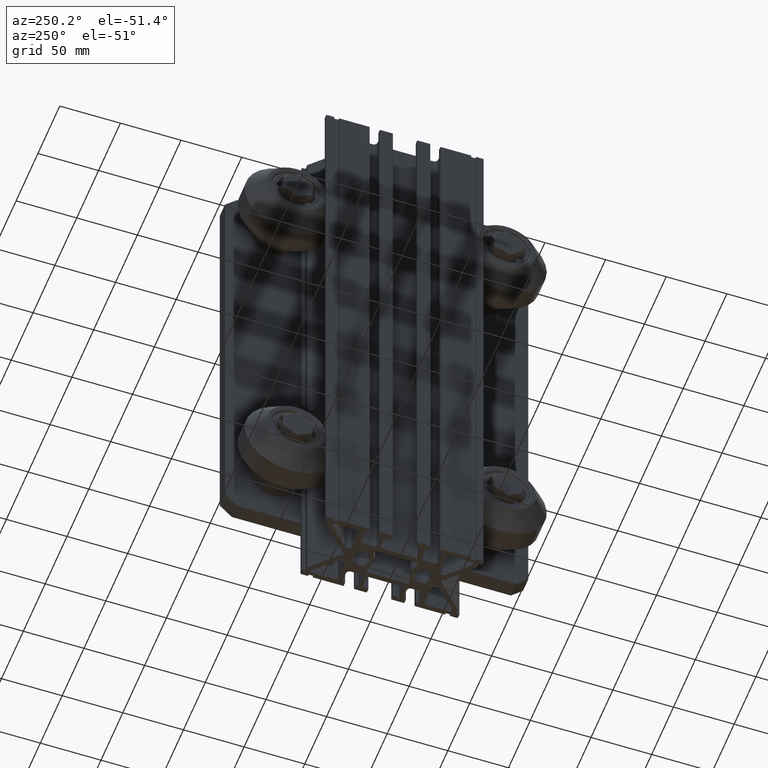
[diagram: clean part render]
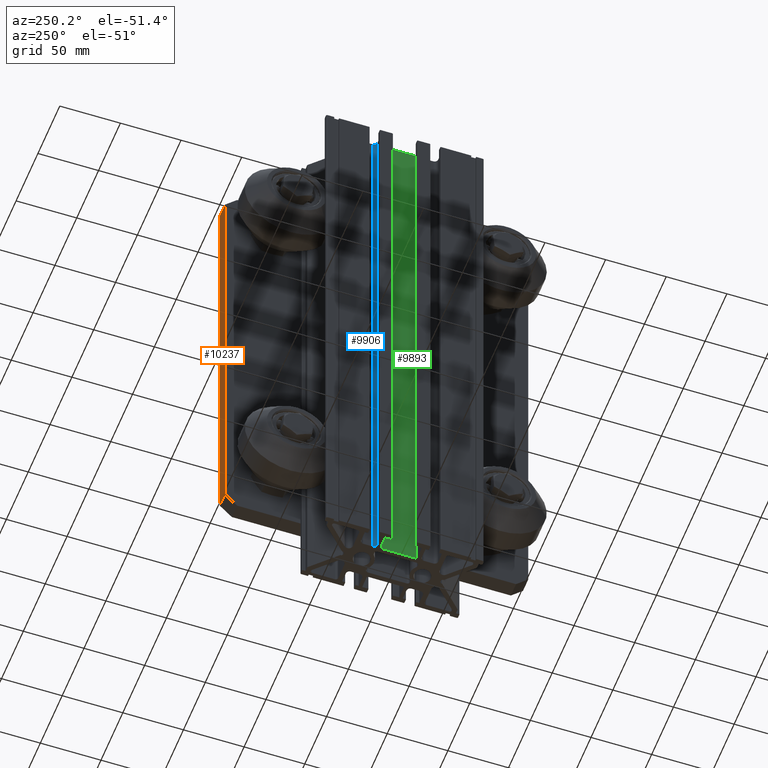
[diagram: same view with three faces highlighted in distinct colors, each labeled with its STEP entity id]
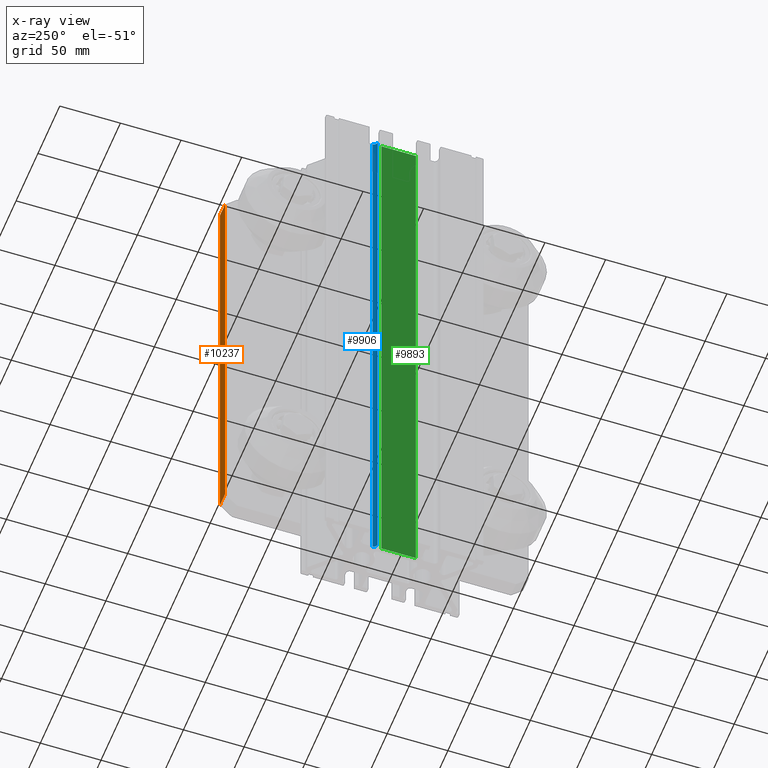
[diagram: x-ray of the same camera — body ghosted, the three highlighted faces saturated]
A machine part, auxiliary view with three faces highlighted in distinct colors.
The next image is the same camera in x-ray (body ghosted, the three faces saturated) — at least one of them is partly hidden behind the body in this view.
Their STEP definitions:

[orange] entity #10237 — the highlighted planar face has unit normal (-0, 1, -0).
#1152=FACE_OUTER_BOUND('',#1734,.T.);
#1734=EDGE_LOOP('',(#9304,#9305,#9306,#9307));
#3006=LINE('',#18682,#3775);
#3007=LINE('',#18685,#3776);
#3008=LINE('',#18687,#3777);
#3009=LINE('',#18688,#3778);
#3775=VECTOR('',#14457,10.);
#3776=VECTOR('',#14460,10.);
#3777=VECTOR('',#14461,10.);
#3778=VECTOR('',#14462,10.);
#4794=VERTEX_POINT('',#18675);
#4797=VERTEX_POINT('',#18680);
#4798=VERTEX_POINT('',#18684);
#4799=VERTEX_POINT('',#18686);
#6303=EDGE_CURVE('',#4797,#4794,#3006,.T.);
#6304=EDGE_CURVE('',#4798,#4797,#3007,.T.);
#6305=EDGE_CURVE('',#4799,#4798,#3008,.T.);
#6306=EDGE_CURVE('',#4794,#4799,#3009,.T.);
#9304=ORIENTED_EDGE('',*,*,#6303,.F.);
#9305=ORIENTED_EDGE('',*,*,#6304,.F.);
#9306=ORIENTED_EDGE('',*,*,#6305,.F.);
#9307=ORIENTED_EDGE('',*,*,#6306,.F.);
#9711=PLANE('',#11590);
#10237=ADVANCED_FACE('',(#1152),#9711,.T.);
#11590=AXIS2_PLACEMENT_3D('',#18683,#14458,#14459);
#14457=DIRECTION('',(0.,0.,1.));
#14458=DIRECTION('center_axis',(-1.,0.,0.));
#14459=DIRECTION('ref_axis',(0.,-1.,0.));
#14460=DIRECTION('',(0.,1.,0.));
#14461=DIRECTION('',(0.,0.,-1.));
#14462=DIRECTION('',(0.,-1.,0.));
#18675=CARTESIAN_POINT('',(-125.,180.,12.));
#18680=CARTESIAN_POINT('',(-125.,180.,0.));
#18682=CARTESIAN_POINT('',(-125.,180.,0.));
#18683=CARTESIAN_POINT('Origin',(-125.,190.,0.));
#18684=CARTESIAN_POINT('',(-125.,-180.,0.));
#18685=CARTESIAN_POINT('',(-125.,-190.,0.));
#18686=CARTESIAN_POINT('',(-125.,-180.,12.));
#18687=CARTESIAN_POINT('',(-125.,-180.,0.));
#18688=CARTESIAN_POINT('',(-125.,-190.,12.));

[blue] entity #9906 — the highlighted cylindrical surface (edge-blend (fillet) strip) has radius 3 mm, axis along (0, 0, 1).
#545=CYLINDRICAL_SURFACE('',#10890,3.);
#821=FACE_OUTER_BOUND('',#1365,.T.);
#1365=EDGE_LOOP('',(#7444,#7445,#7446,#7447));
#1755=CIRCLE('',#10545,3.);
#1914=CIRCLE('',#10747,3.);
#2658=LINE('',#15652,#3427);
#2659=LINE('',#15654,#3428);
#3427=VECTOR('',#12709,10.);
#3428=VECTOR('',#12712,10.);
#3801=VERTEX_POINT('',#14540);
#3802=VERTEX_POINT('',#14542);
#4028=VERTEX_POINT('',#15080);
#4171=VERTEX_POINT('',#15365);
#4819=EDGE_CURVE('',#3801,#3802,#1755,.T.);
#5231=EDGE_CURVE('',#4171,#4028,#1914,.T.);
#5374=EDGE_CURVE('',#4171,#3802,#2658,.T.);
#5375=EDGE_CURVE('',#4028,#3801,#2659,.T.);
#7444=ORIENTED_EDGE('',*,*,#5374,.T.);
#7445=ORIENTED_EDGE('',*,*,#4819,.F.);
#7446=ORIENTED_EDGE('',*,*,#5375,.F.);
#7447=ORIENTED_EDGE('',*,*,#5231,.F.);
#9906=ADVANCED_FACE('',(#821),#545,.F.);
#10545=AXIS2_PLACEMENT_3D('',#14543,#11624,#11625);
#10747=AXIS2_PLACEMENT_3D('',#15367,#12281,#12282);
#10890=AXIS2_PLACEMENT_3D('',#15653,#12710,#12711);
#11624=DIRECTION('center_axis',(0.,0.,-1.));
#11625=DIRECTION('ref_axis',(0.,1.,0.));
#12281=DIRECTION('center_axis',(0.,0.,1.));
#12282=DIRECTION('ref_axis',(0.,1.,0.));
#12709=DIRECTION('',(0.,0.,1.));
#12710=DIRECTION('center_axis',(0.,0.,1.));
#12711=DIRECTION('ref_axis',(0.,1.,0.));
#12712=DIRECTION('',(0.,0.,1.));
#14540=CARTESIAN_POINT('',(-14.6000000000019,21.2500000000001,450.));
#14542=CARTESIAN_POINT('',(-17.6000000000019,18.2499999999999,450.));
#14543=CARTESIAN_POINT('Origin',(-17.6000000000019,21.2500000000001,450.));
#15080=CARTESIAN_POINT('',(-14.6000000000019,21.2500000000001,-50.));
#15365=CARTESIAN_POINT('',(-17.6000000000019,18.2499999999999,-50.));
#15367=CARTESIAN_POINT('Origin',(-17.6000000000019,21.2500000000001,-50.));
#15652=CARTESIAN_POINT('',(-17.6000000000019,18.2499999999999,0.));
#15653=CARTESIAN_POINT('Origin',(-17.6000000000019,21.2500000000001,0.));
#15654=CARTESIAN_POINT('',(-14.6000000000019,21.2500000000001,0.));

[green] entity #9893 — the highlighted planar face has unit normal (-1, 0, 0).
#808=FACE_OUTER_BOUND('',#1352,.T.);
#1352=EDGE_LOOP('',(#7392,#7393,#7394,#7395));
#2270=LINE('',#14569,#3039);
#2508=LINE('',#15342,#3277);
#2645=LINE('',#15626,#3414);
#2646=LINE('',#15628,#3415);
#3039=VECTOR('',#11643,10.);
#3277=VECTOR('',#12263,10.);
#3414=VECTOR('',#12670,10.);
#3415=VECTOR('',#12673,10.);
#3814=VERTEX_POINT('',#14566);
#3815=VERTEX_POINT('',#14568);
#4158=VERTEX_POINT('',#15339);
#4159=VERTEX_POINT('',#15341);
#4832=EDGE_CURVE('',#3814,#3815,#2270,.T.);
#5218=EDGE_CURVE('',#4158,#4159,#2508,.T.);
#5361=EDGE_CURVE('',#4158,#3815,#2645,.T.);
#5362=EDGE_CURVE('',#4159,#3814,#2646,.T.);
#7392=ORIENTED_EDGE('',*,*,#5361,.T.);
#7393=ORIENTED_EDGE('',*,*,#4832,.F.);
#7394=ORIENTED_EDGE('',*,*,#5362,.F.);
#7395=ORIENTED_EDGE('',*,*,#5218,.F.);
#9471=PLANE('',#10877);
#9893=ADVANCED_FACE('',(#808),#9471,.T.);
#10877=AXIS2_PLACEMENT_3D('',#15627,#12671,#12672);
#11643=DIRECTION('',(0.,-1.,0.));
#12263=DIRECTION('',(0.,1.,0.));
#12670=DIRECTION('',(0.,0.,1.));
#12671=DIRECTION('center_axis',(-1.,0.,0.));
#12672=DIRECTION('ref_axis',(0.,-1.,0.));
#12673=DIRECTION('',(0.,0.,1.));
#14566=CARTESIAN_POINT('',(-15.0000000000017,14.25,450.));
#14568=CARTESIAN_POINT('',(-15.0000000000017,-14.25,450.));
#14569=CARTESIAN_POINT('',(-15.0000000000017,14.25,450.));
#15339=CARTESIAN_POINT('',(-15.0000000000017,-14.25,-50.));
#15341=CARTESIAN_POINT('',(-15.0000000000017,14.25,-50.));
#15342=CARTESIAN_POINT('',(-15.0000000000017,14.25,-50.));
#15626=CARTESIAN_POINT('',(-15.0000000000017,-14.25,0.));
#15627=CARTESIAN_POINT('Origin',(-15.0000000000017,14.25,0.));
#15628=CARTESIAN_POINT('',(-15.0000000000017,14.25,0.));